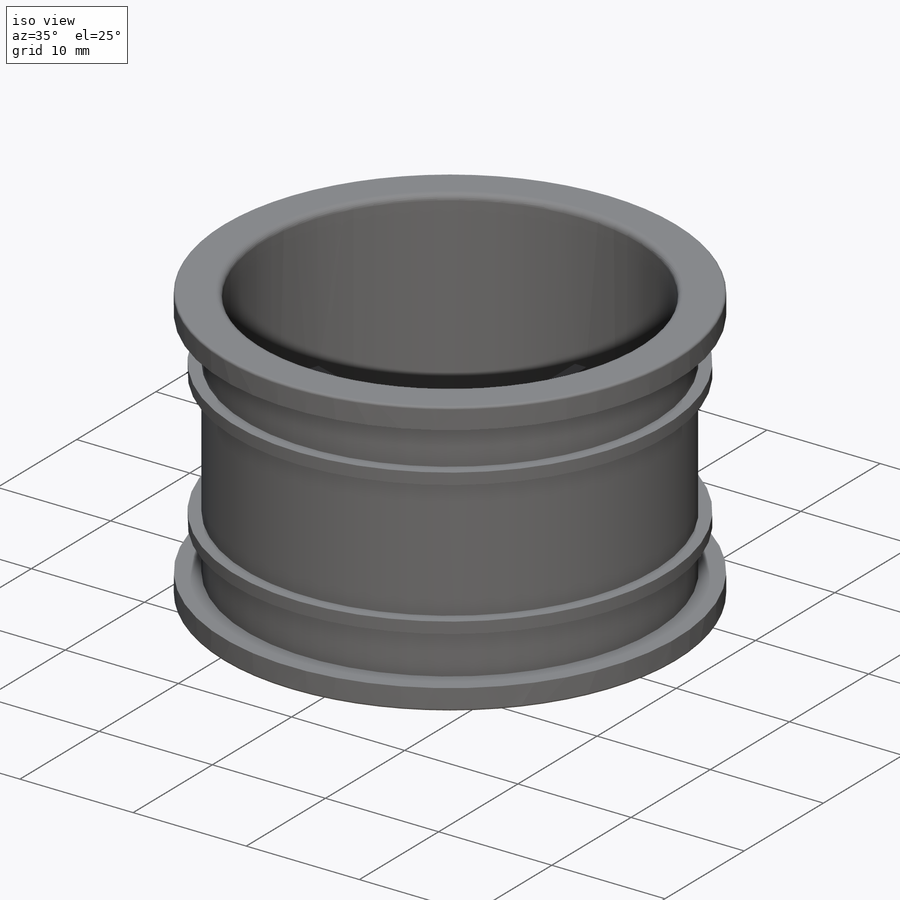
[diagram: iso view]
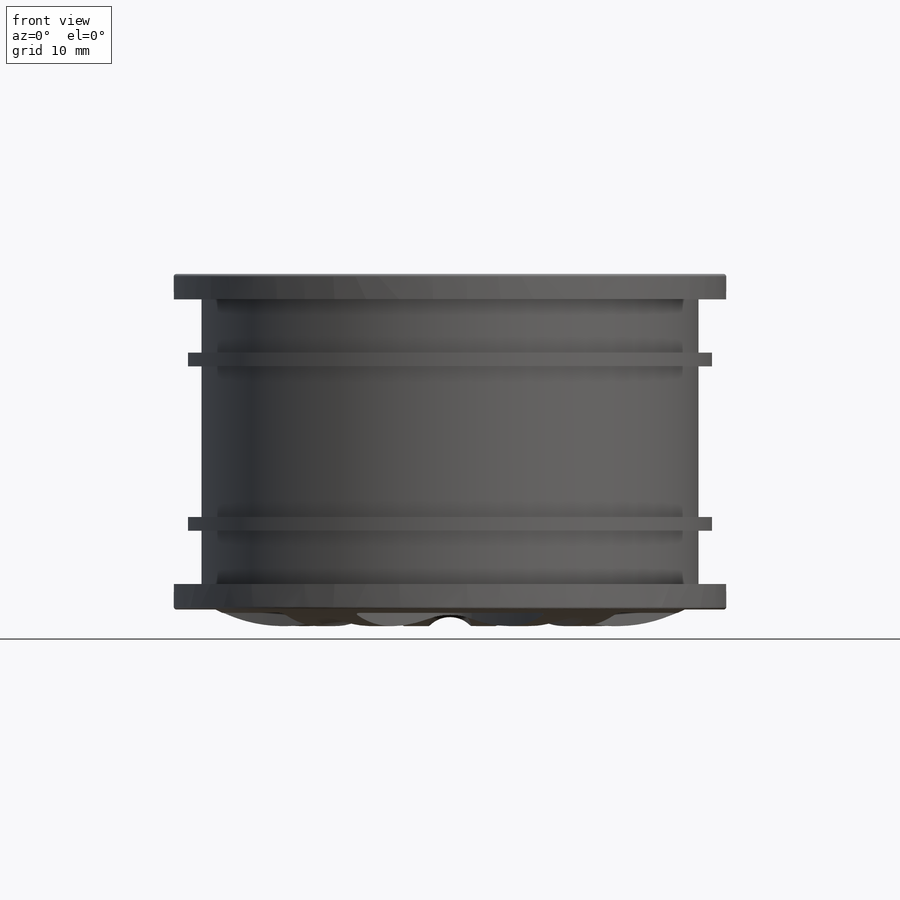
[diagram: front view]
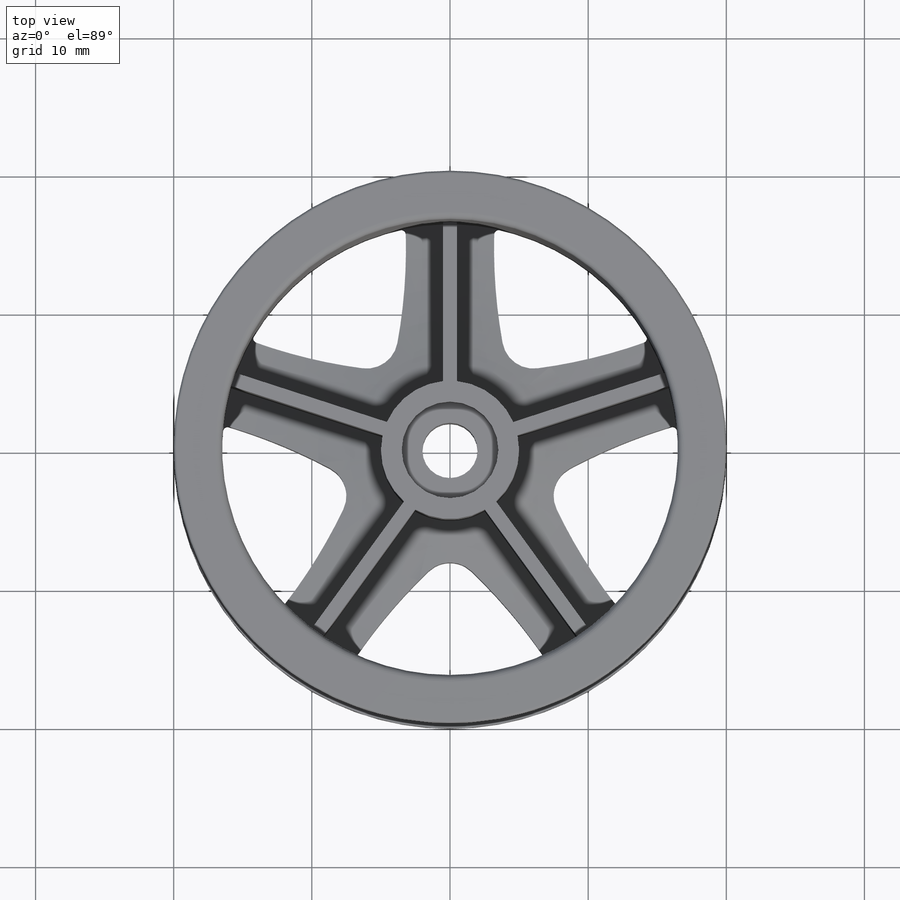
[diagram: top view]
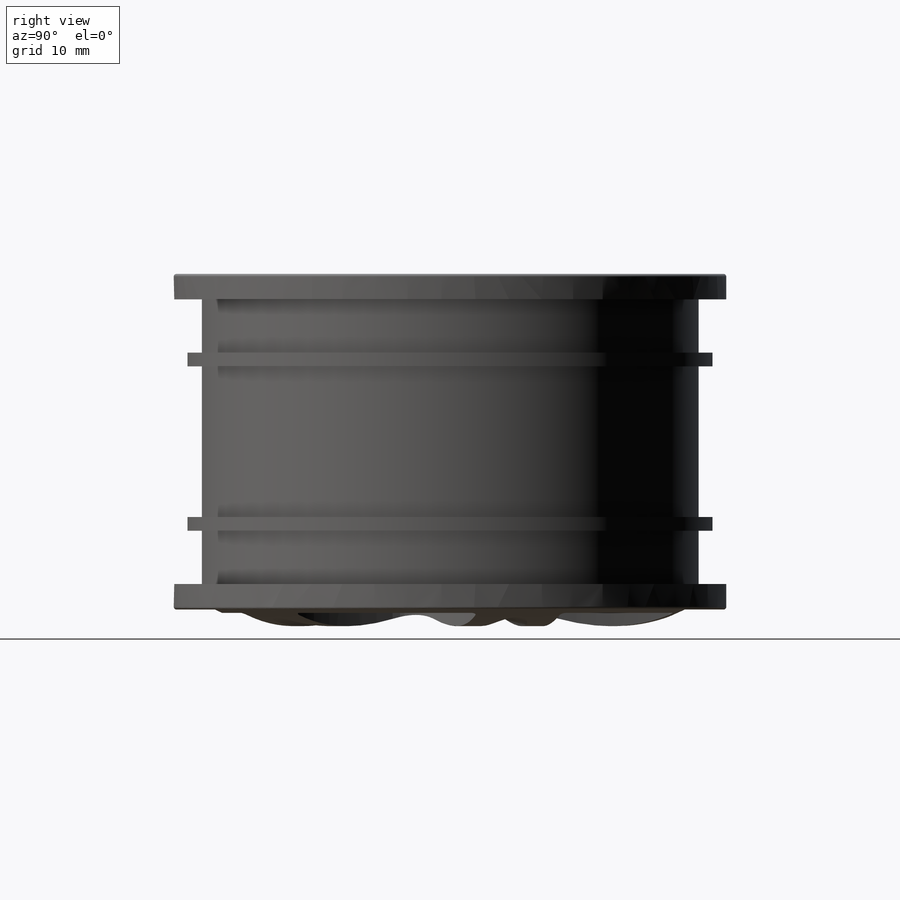
[diagram: right view]
SOLIDWORKS PART (.sldprt)
format: sldprt  version: not decoded by parser v0  size: 761,344 bytes
history: native  units: mm
features: sketch x9, plane x6, cut_extrude x4, pattern_circular x3, revolve x2, material x1, extrude x1 (+10 scaffold rows collapsed)
feature tree (36):
  scaffold x10  (default folders/planes/origin — collapsed)
  material  "材质 <未指定>"
  plane  "前视基准面"
  plane  "上视基准面"
  plane  "右视基准面"
  sketch  "草图1"  dims[D9=0.5mm D10=0.2mm D11=0.2mm D1=24.3mm D2=1.85mm D3=3.85mm D4=1.0mm D5=1.0mm D6=20.0mm D7=18.0mm D8=3.5mm]
  revolve  "旋转1"  Angle=360deg
  plane  "基准面1"  Offset=24mm
  sketch  "草图9"  dims[c1.D6=0.5mm c1.D10=~10.681589mm c1.D11=~48.081502mm c1.D1=12.0mm c1.D2=6.5mm c1.D3=3.5mm c1.D4=3.0mm c1.D5=1.2mm c1.D7=2.5mm c1.D8=1.5mm c1.D9=8.0mm c1.D12=4.0mm c2.D3=2.0mm]
  revolve  "旋转3"  Angle=360deg
  plane  "基准面2"  Offset=5mm
  sketch  "草图10"  dims[c1.D4=33.0mm c1.D5=~0.774452mm c1.D3=5.0mm c1.D1=8.5mm c1.D2=6.7mm c2.D1=8.5mm c2.D3=6.0mm c2.D2=6.7mm]
  cut_extrude  "切除-拉伸3"  [1 undecoded]
  sketch  "草图12"
  plane  "基准面4"
  pattern_circular  "阵列(圆周)2"  Count=5 Angle=72deg
  sketch  "草图11"  dims[D2=3.5mm D1=1.2mm]
  cut_extrude  "切除-拉伸4"  [1 undecoded]
  pattern_circular  "阵列(圆周)3"  Count=5 Angle=72deg
  sketch  "草图13"  dims[c1.D1=0.5mm c1.D2=16.5mm c2.D1=0.5mm c2.D2=0.5mm]
  extrude  "凸台-拉伸1"  [1 undecoded]
  pattern_circular  "阵列(圆周)4"  Count=5 Angle=72deg
  sketch  "草图14"  dims[D1=0.0mm]
  cut_extrude  "切除-拉伸5"  Depth=2mm
  sketch  "草图15"  dims[D1=7.0mm]
  cut_extrude  "切除-拉伸6"  Depth=2.2mm
  sketch  "草图16"
decode coverage: 14 of 19 modeling features carry decoded parameters
note: ~ marks probable driven/reference dimensions
note: 3 parameter values undecoded
summary: no parameter record found for 3 features
note: suppression state not decoded; provenance and decode notes live in map.json
